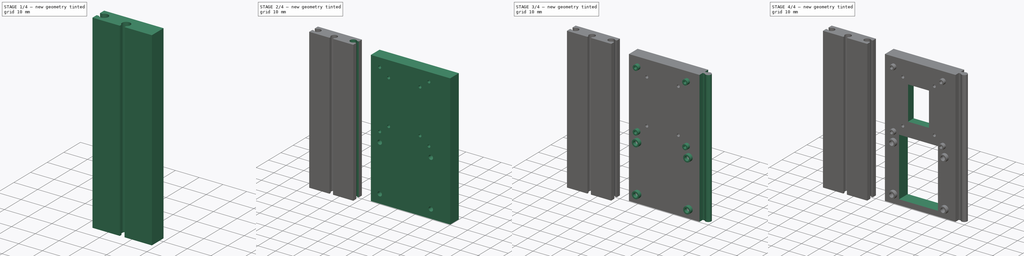
[diagram: build sequence overview — one tinted view per stage of 4, left to right]
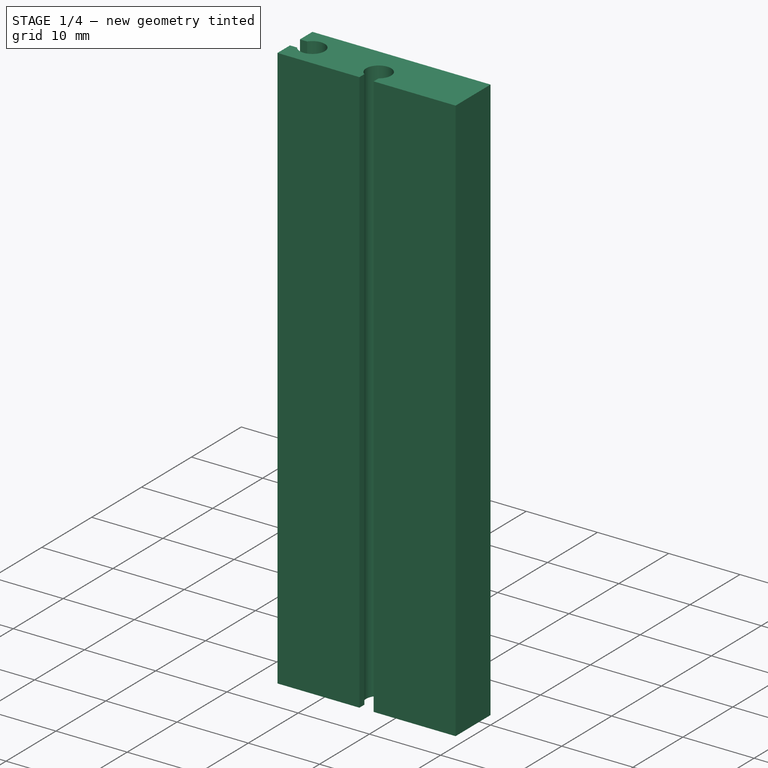
[diagram: stage 1 of 4 — iso view after this stage's code; geometry added in this stage tinted green]
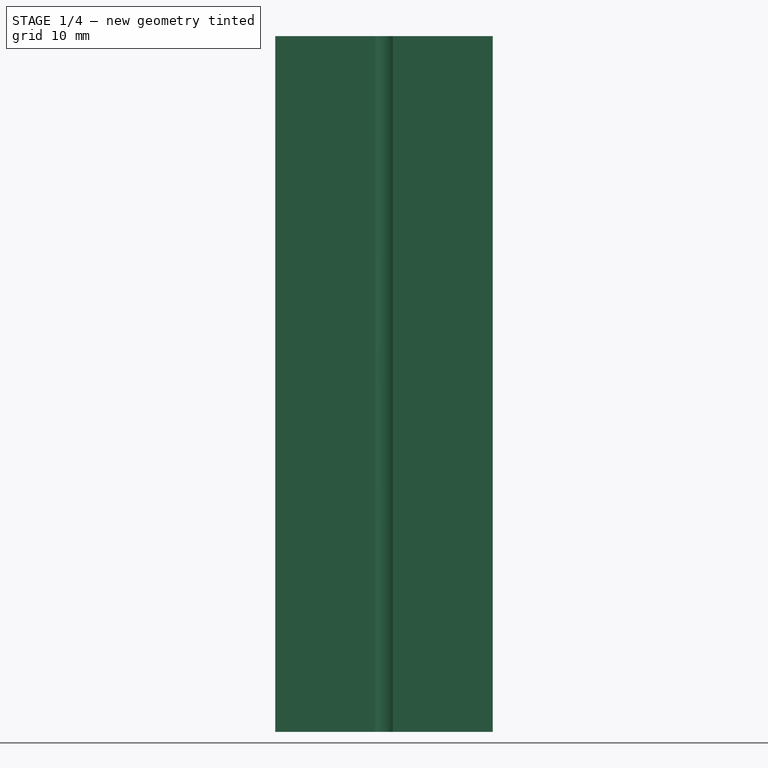
[diagram: stage 1 of 4 — front view after this stage's code; geometry added in this stage tinted green]
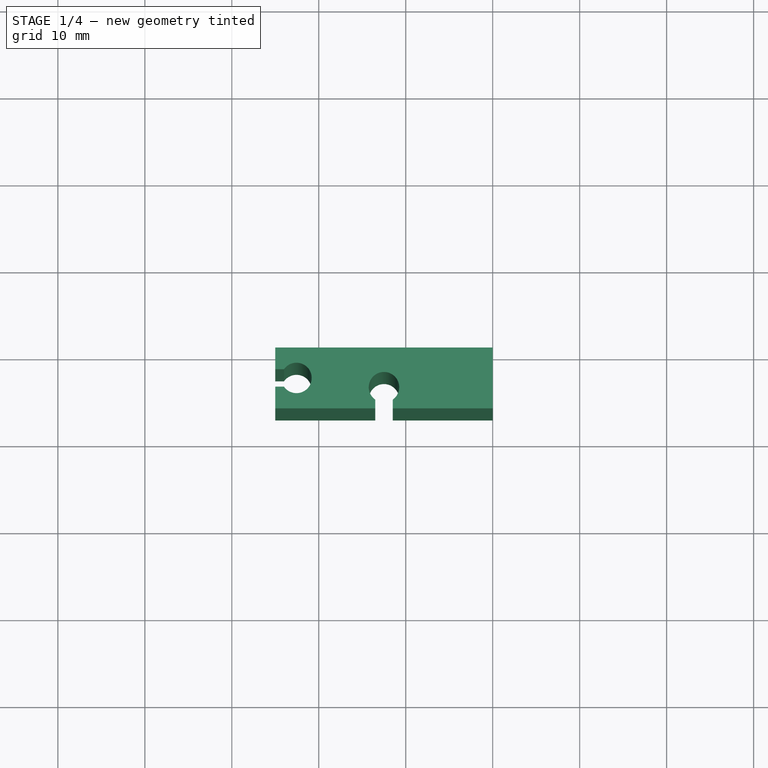
[diagram: stage 1 of 4 — top view after this stage's code; geometry added in this stage tinted green]
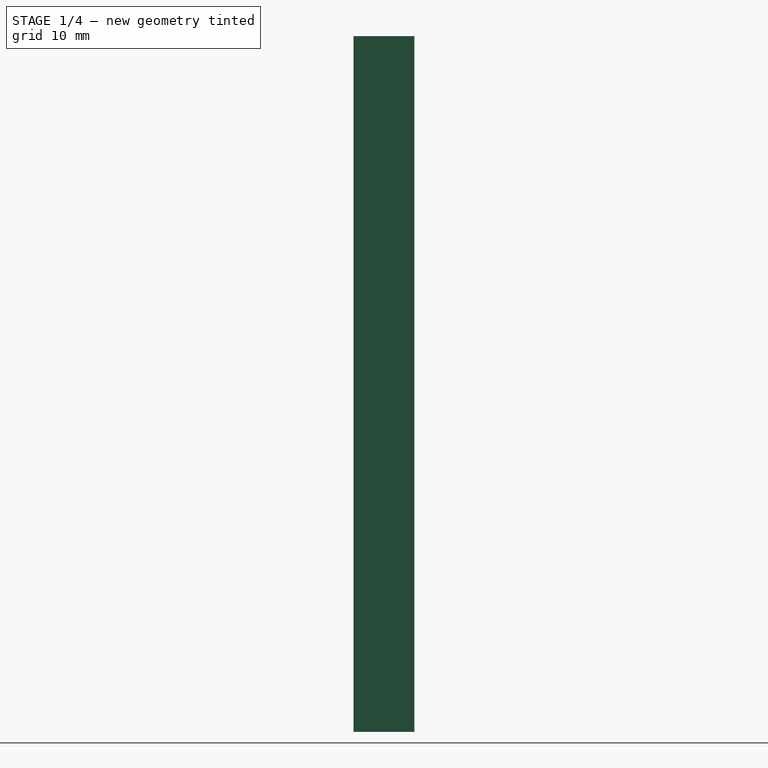
[diagram: stage 1 of 4 — right view after this stage's code; geometry added in this stage tinted green]
FCSTD DOCUMENT  (FreeCAD 0.20R29177 +233 (Git))
Label: board_mount_body
License: All rights reserved
LicenseURL: http://en.wikipedia.org/wiki/All_rights_reserved
objects: Sketcher::SketchObject×10, PartDesign::Pocket×6, PartDesign::Pad×3, Spreadsheet::Sheet×2, PartDesign::Body×2, PartDesign::Fillet×1, PartDesign::Plane×1, PartDesign::Mirrored×1
note: 34 computed .brp shape members not serialized (recipe doc carries the construction recipe); baked Part::Feature solids carry a one-line shape summary decoded from their .brp

FEATURE [Sketcher::SketchObject] Sketch
  FullyConstrained = true
  MapMode = 5
  Placement = pos=(0,0,0) rot=(1,0,0;1.5708rad)
  Support = -> [XZ_Plane]
  sketch-geometry (4):
    g0: LineSegment StartX=-25 StartY=80 StartZ=0 EndX=0 EndY=80 EndZ=0
    g1: LineSegment StartX=0 StartY=80 StartZ=0 EndX=0 EndY=0 EndZ=0
    g2: LineSegment StartX=0 StartY=0 StartZ=0 EndX=-25 EndY=0 EndZ=0
    g3: LineSegment StartX=-25 StartY=0 StartZ=0 EndX=-25 EndY=80 EndZ=0
  constraints (11):
    c: Coincident(g0,g1)
    c: Coincident(g1,g2)
    c: Coincident(g2,g3)
    c: Coincident(g3,g0)
    c: Horizontal(g0)
    c: Horizontal(g2)
    c: Vertical(g1)
    c: Vertical(g3)
    c: Coincident(g1,g-1)
    c: DistanceX(g0,g0) = 25
    c: DistanceY(g1,g1) = 80
FEATURE [PartDesign::Pad] Pad
  Direction = (0,-1,2e-16)
  Length = 7
  Length2 = 10
  Placement = pos=(0,0,0) rot=(1,0,0;1.5708rad)
  Profile = -> Sketch
  ReferenceAxis = -> Sketch [N_Axis]
  Type = 0
FEATURE [Sketcher::SketchObject] Sketch005
  ExternalGeometry = -> [Pad]
  FullyConstrained = true
  MapMode = 5
  Placement = pos=(0,0,0) rot=(1,0,0;3.14159rad)
  Support = -> [Pad]
  sketch-geometry (6):
    g0: LineSegment StartX=-13.5 StartY=7 StartZ=0 EndX=-13.5 EndY=6 EndZ=0
    g1: LineSegment StartX=-11.5 StartY=7 StartZ=0 EndX=-11.5 EndY=6 EndZ=0
    g2: LineSegment StartX=-13.5 StartY=7 StartZ=0 EndX=-11.5 EndY=7 EndZ=0
    g3: GeomPoint X=-12.5 Y=7 Z=0
    g4: Circle CenterX=-12.5 CenterY=4.56386 CenterZ=0 NormalX=0 NormalY=0 NormalZ=1 AngleXU=0 Radius=1.75
    g5: ArcOfCircle CenterX=-12.5 CenterY=4.56386 CenterZ=0 NormalX=0 NormalY=0 NormalZ=1 AngleXU=0 Radius=1.75 StartAngle=2.17904 EndAngle=7.24574
  constraints (15):
    c: PointOnObject(g0,g-3)
    c: Coincident(g2,g0)
    c: Coincident(g2,g1)
    c: Symmetric(g1,g0,g3)
    c: Equal(g1,g0)
    c: Distance(g2) = 2
    c: Symmetric(g-3,g-4,g3)
    c: Vertical(g1)
    c: Vertical(g0)
    c: PointOnObject(g1,g4)
    c: Distance(g0) = 1
    c: Coincident(g5,g4)
    c: Coincident(g5,g1)
    c: Coincident(g5,g0)
    c: Diameter(g4) = 3.5
FEATURE [PartDesign::Pocket] Pocket001
  BaseFeature = -> Pad
  Direction = (0,2e-16,1)
  Length = 5
  Length2 = 5
  Placement = pos=(0,0,0) rot=(1,0,0;1.5708rad)
  Profile = -> Sketch005
  ReferenceAxis = -> Sketch005 [N_Axis]
  Type = 2
FEATURE [PartDesign::Body] Body001
  Group = -> [Sketch003,Pad001,Sketch004,Pocket,Sketch006,Pocket002,Sketch007,Pad002,Sketch008,Pocket003,Fillet,Sketch009,Pocket004]
  Origin = -> Origin001
  Tip = -> Pocket004
FEATURE [Sketcher::SketchObject] Sketch011
  ExternalGeometry = -> [Pocket001]
  FullyConstrained = true
  MapMode = 5
  Placement = pos=(0,0,0) rot=(1,0,0;3.14159rad)
  Support = -> [Pocket001]
  expr: Constraints[11] = 3.5 / 2
  sketch-geometry (5):
    g0: LineSegment StartX=-24 StartY=4.5 StartZ=0 EndX=-25 EndY=4.5 EndZ=0
    g1: LineSegment StartX=-25 StartY=4.5 StartZ=0 EndX=-25 EndY=2.5 EndZ=0
    g2: LineSegment StartX=-25 StartY=2.5 StartZ=0 EndX=-24 EndY=2.5 EndZ=0
    g3: GeomPoint X=-25 Y=3.5 Z=0
    g4: ArcOfCircle CenterX=-22.5639 CenterY=3.5 CenterZ=0 NormalX=0 NormalY=0 NormalZ=1 AngleXU=0 Radius=1.75 StartAngle=3.74984 EndAngle=8.81653
  constraints (13):
    c: Coincident(g1,g0)
    c: Vertical(g1)
    c: Coincident(g2,g1)
    c: Equal(g2,g0)
    c: Symmetric(g1,g0,g3)
    c: Symmetric(g-4,g-5,g3)
    c: Distance(g0,g1) = 2
    c: Horizontal(g0)
    c: Horizontal(g2)
    c: Coincident(g4,g0)
    c: Coincident(g4,g2)
    c: Radius(g4) = 1.75
    c: Distance(g2) = 1
FEATURE [PartDesign::Pocket] Pocket005
  BaseFeature = -> Pocket001
  Direction = (0,2e-16,1)
  Length = 5
  Length2 = 5
  Placement = pos=(0,0,0) rot=(1,0,0;1.5708rad)
  Profile = -> Sketch011
  ReferenceAxis = -> Sketch011 [N_Axis]
  Type = 2
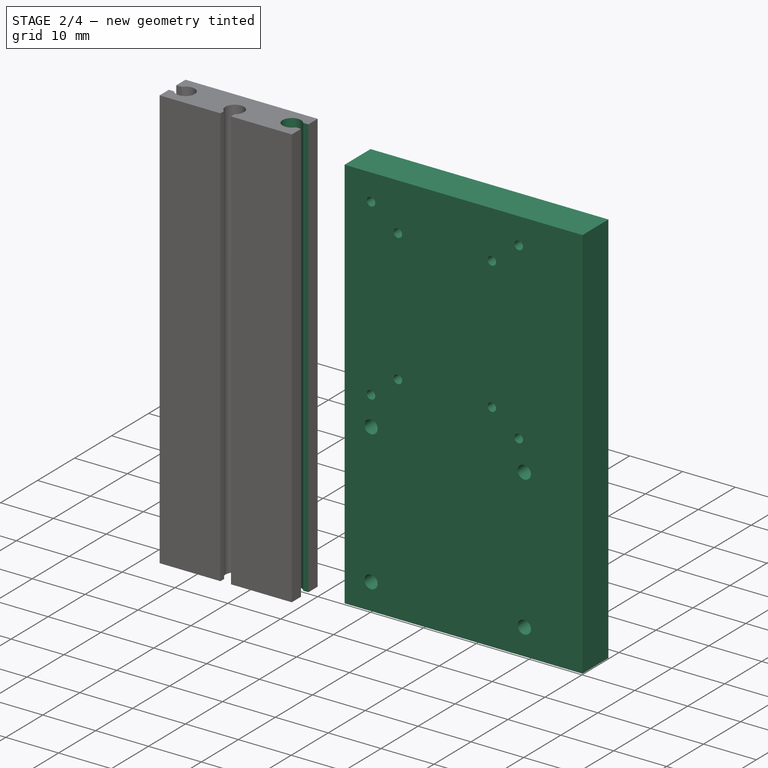
[diagram: stage 2 of 4 — iso view after this stage's code; geometry added in this stage tinted green]
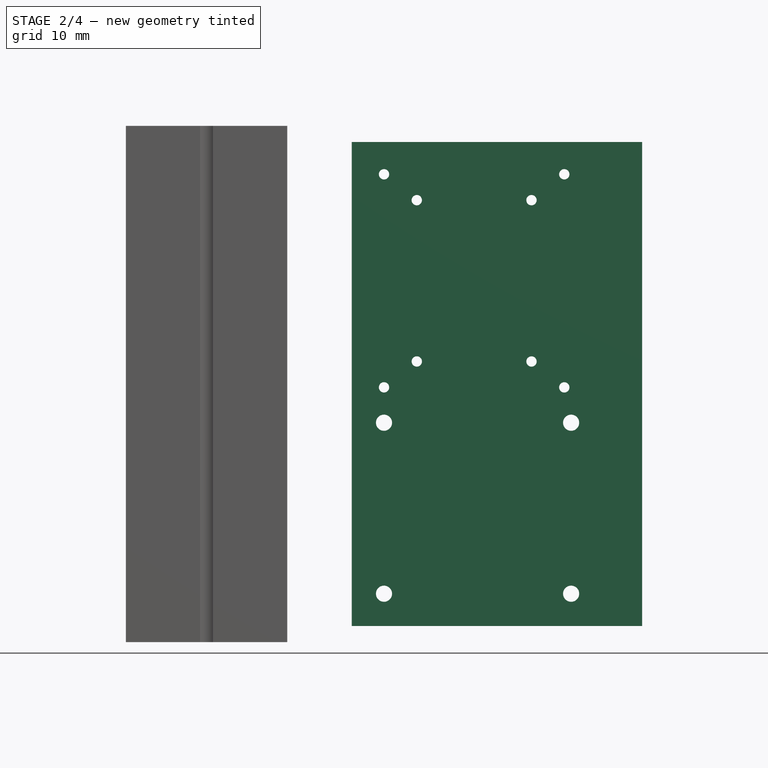
[diagram: stage 2 of 4 — front view after this stage's code; geometry added in this stage tinted green]
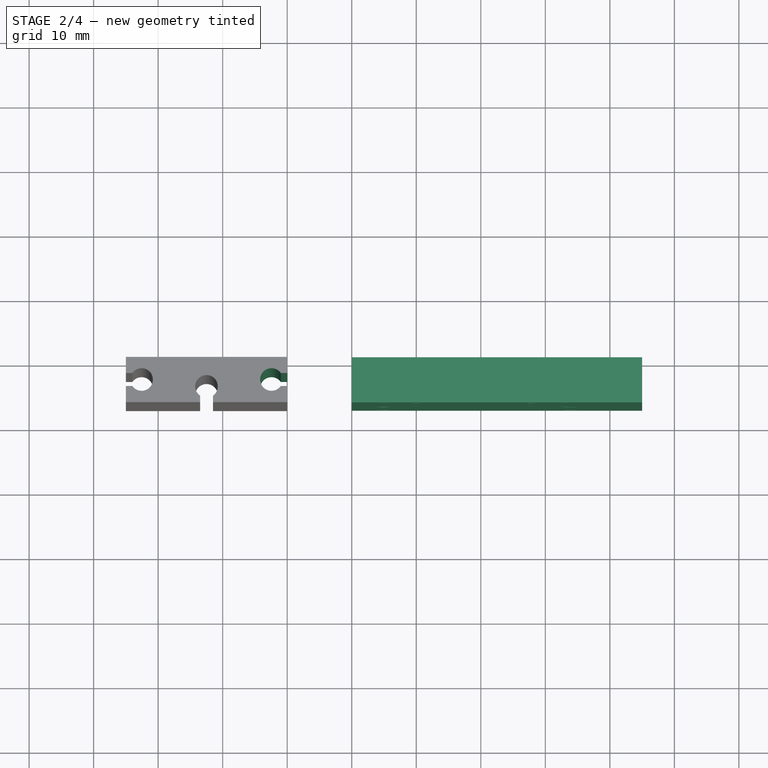
[diagram: stage 2 of 4 — top view after this stage's code; geometry added in this stage tinted green]
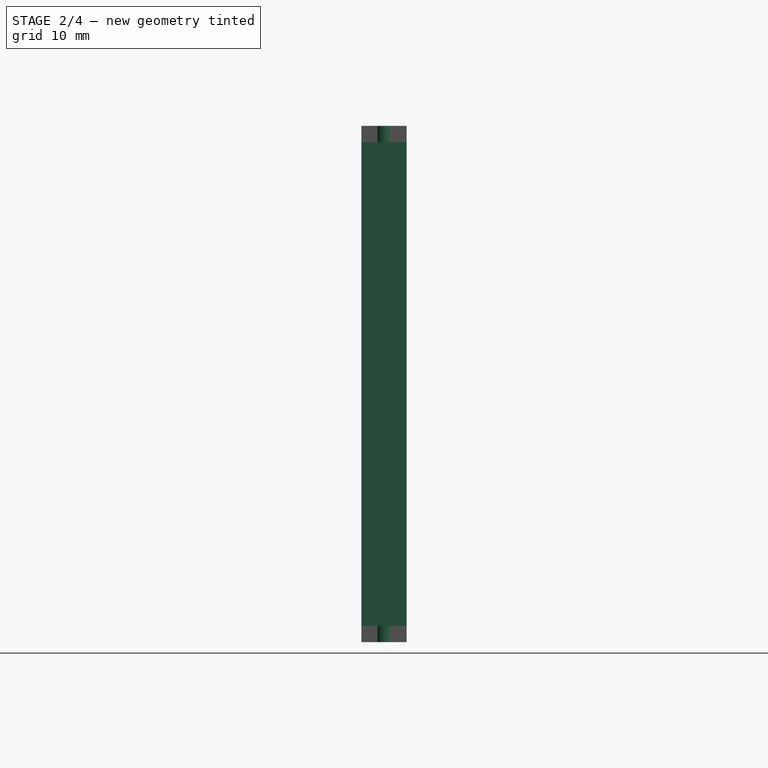
[diagram: stage 2 of 4 — right view after this stage's code; geometry added in this stage tinted green]
FEATURE [Spreadsheet::Sheet] Spreadsheet  label="solar controller dims"
  cells = A1=horizontal mount spacing; B1(mount_hole_width)==1.3in; A2=vertical mount spacing; B2(mount_hole_height)==1.1in
FEATURE [Sketcher::SketchObject] Sketch003
  FullyConstrained = true
  MapMode = 5
  Placement = pos=(0,0,0) rot=(1,0,0;1.5708rad)
  Support = -> [XZ_Plane001]
  expr: Constraints[10] = (80 - 75) / 2
  sketch-geometry (4):
    g0: LineSegment StartX=10 StartY=77.5 StartZ=0 EndX=55 EndY=77.5 EndZ=0
    g1: LineSegment StartX=55 StartY=77.5 StartZ=0 EndX=55 EndY=2.5 EndZ=0
    g2: LineSegment StartX=55 StartY=2.5 StartZ=0 EndX=10 EndY=2.5 EndZ=0
    g3: LineSegment StartX=10 StartY=2.5 StartZ=0 EndX=10 EndY=77.5 EndZ=0
  constraints (12):
    c: Coincident(g0,g1)
    c: Coincident(g1,g2)
    c: Coincident(g2,g3)
    c: Coincident(g3,g0)
    c: Horizontal(g0)
    c: Horizontal(g2)
    c: Vertical(g1)
    c: Vertical(g3)
    c: DistanceY(g1,g1) = 75
    c: DistanceX(g2,g2) = 45
    c: DistanceY(g-1,g2) = 2.5
    c: DistanceX(g-1,g2) = 10
FEATURE [PartDesign::Pad] Pad001
  Direction = (0,-1,2e-16)
  Length = 7
  Length2 = 10
  Placement = pos=(0,0,0) rot=(1,0,0;1.5708rad)
  Profile = -> Sketch003
  ReferenceAxis = -> Sketch003 [N_Axis]
  Type = 0
FEATURE [Sketcher::SketchObject] Sketch004
  ExternalGeometry = -> [Pad001]
  FullyConstrained = true
  MapMode = 5
  Placement = pos=(0,-7,3.1e-15) rot=(1,0,0;1.5708rad)
  Support = -> [Pad001]
  expr: Constraints[16] = <<solar controller dims>>.mount_hole_width
  expr: Constraints[17] = <<solar controller dims>>.mount_hole_height
  expr: Constraints[36] = <<buck boost dims>>.mount_hole_width
  sketch-geometry (29):
    g0: LineSegment StartX=15 StartY=39.48 StartZ=0 EndX=42.94 EndY=39.48 EndZ=0
    g1: LineSegment StartX=42.94 StartY=39.48 StartZ=0 EndX=42.94 EndY=72.5 EndZ=0
    g2: LineSegment StartX=42.94 StartY=72.5 StartZ=0 EndX=15 EndY=72.5 EndZ=0
    g3: LineSegment StartX=15 StartY=72.5 StartZ=0 EndX=15 EndY=39.48 EndZ=0
    g4: Circle CenterX=15 CenterY=39.48 CenterZ=0 NormalX=0 NormalY=0 NormalZ=1 AngleXU=0 Radius=0.8
    g5: Circle CenterX=15 CenterY=72.5 CenterZ=0 NormalX=0 NormalY=0 NormalZ=1 AngleXU=0 Radius=0.8
    g6: Circle CenterX=42.94 CenterY=39.48 CenterZ=0 NormalX=0 NormalY=0 NormalZ=1 AngleXU=0 Radius=0.8
    g7: Circle CenterX=42.94 CenterY=72.5 CenterZ=0 NormalX=0 NormalY=0 NormalZ=1 AngleXU=0 Radius=0.8
    g8: LineSegment StartX=15 StartY=7.5 StartZ=0 EndX=44 EndY=7.5 EndZ=0
    g9: LineSegment StartX=44 StartY=7.5 StartZ=0 EndX=44 EndY=34 EndZ=0
    g10: LineSegment StartX=44 StartY=34 StartZ=0 EndX=15 EndY=34 EndZ=0
    g11: LineSegment StartX=15 StartY=34 StartZ=0 EndX=15 EndY=7.5 EndZ=0
    g12: LineSegment StartX=20.08 StartY=43.49 StartZ=0 EndX=37.86 EndY=43.49 EndZ=0
    g13: LineSegment StartX=37.86 StartY=43.49 StartZ=0 EndX=37.86 EndY=68.49 EndZ=0
    g14: LineSegment StartX=37.86 StartY=68.49 StartZ=0 EndX=20.08 EndY=68.49 EndZ=0
    g15: LineSegment StartX=20.08 StartY=68.49 StartZ=0 EndX=20.08 EndY=43.49 EndZ=0
    g16: LineSegment StartX=15 StartY=55.99 StartZ=0 EndX=42.94 EndY=55.99 EndZ=0
    g17: LineSegment StartX=28.97 StartY=39.48 StartZ=0 EndX=28.97 EndY=72.5 EndZ=0
    g18: GeomPoint X=28.97 Y=55.99 Z=0
    g19: GeomPoint X=20.08 Y=55.99 Z=0
    g20: GeomPoint X=28.97 Y=43.49 Z=0
    g21: Circle CenterX=20.08 CenterY=43.49 CenterZ=0 NormalX=0 NormalY=0 NormalZ=1 AngleXU=0 Radius=0.8
    g22: Circle CenterX=20.08 CenterY=68.49 CenterZ=0 NormalX=0 NormalY=0 NormalZ=1 AngleXU=0 Radius=0.8
    g23: Circle CenterX=37.86 CenterY=68.49 CenterZ=0 NormalX=0 NormalY=0 NormalZ=1 AngleXU=0 Radius=0.8
    g24: Circle CenterX=37.86 CenterY=43.49 CenterZ=0 NormalX=0 NormalY=0 NormalZ=1 AngleXU=0 Radius=0.8
    g25: Circle CenterX=15 CenterY=7.5 CenterZ=0 NormalX=0 NormalY=0 NormalZ=1 AngleXU=0 Radius=1.25
    g26: Circle CenterX=15 CenterY=34 CenterZ=0 NormalX=0 NormalY=0 NormalZ=1 AngleXU=0 Radius=1.25
    g27: Circle CenterX=44 CenterY=34 CenterZ=0 NormalX=0 NormalY=0 NormalZ=1 AngleXU=0 Radius=1.25
    g28: Circle CenterX=44 CenterY=7.5 CenterZ=0 NormalX=0 NormalY=0 NormalZ=1 AngleXU=0 Radius=1.25
  constraints (68):
    c: Coincident(g0,g1)
    c: Coincident(g1,g2)
    c: Coincident(g2,g3)
    c: Coincident(g3,g0)
    c: Horizontal(g0)
    c: Horizontal(g2)
    c: Vertical(g1)
    c: Vertical(g3)
    c: Coincident(g4,g0)
    c: Coincident(g5,g2)
    c: Coincident(g6,g0)
    c: Coincident(g7,g1)
    c: Equal(g6,g4)
    c: Equal(g4,g5)
    c: Equal(g5,g7)
    c: Diameter(g4) = 1.6
    c: Distance(g3) = 33.02
    c: Distance(g0) = 27.94
    c: Coincident(g8,g9)
    c: Coincident(g9,g10)
    c: Coincident(g10,g11)
    c: Coincident(g11,g8)
    c: Horizontal(g8)
    c: Horizontal(g10)
    c: Vertical(g9)
    c: Vertical(g11)
    c: Distance(g11) = 26.5
    c: Distance(g10) = 29
    c: Coincident(g12,g13)
    c: Coincident(g13,g14)
    c: Coincident(g14,g15)
    c: Coincident(g15,g12)
    c: Horizontal(g12)
    c: Horizontal(g14)
    c: Vertical(g13)
    c: Vertical(g15)
    c: Distance(g12) = 17.78
    c: PointOnObject(g18,g16)
    c: PointOnObject(g18,g17)
    c: Symmetric(g6,g4,g17)
    c: Symmetric(g4,g5,g16)
    c: Symmetric(g5,g7,g17)
    c: Symmetric(g6,g7,g16)
    c: Symmetric(g14,g12,g19)
    c: PointOnObject(g19,g16)
    c: Symmetric(g12,g12,g20)
    c: PointOnObject(g20,g17)
    c: Distance(g13) = 25
    c: Coincident(g21,g12)
    c: Coincident(g22,g14)
    c: Coincident(g23,g13)
    c: Coincident(g24,g12)
    c: Equal(g24,g21)
    c: Equal(g21,g22)
    c: Equal(g22,g23)
    c: Equal(g23,g4)
    c: DistanceY(g-4,g8) = 5
    c: DistanceY(g5,g-6) = 5
    c: DistanceX(g-6,g5) = 5
    c: DistanceX(g-4,g8) = 5
    c: Coincident(g25,g8)
    c: Coincident(g26,g10)
    c: Coincident(g27,g9)
    c: Coincident(g28,g8)
    c: Equal(g25,g26)
    c: Equal(g25,g28)
    c: Equal(g25,g27)
    c: Diameter(g25) = 2.5
FEATURE [Spreadsheet::Sheet] Spreadsheet001  label="buck boost dims"
  cells = A1=mount hole width; B1(mount_hole_width)==0.7in
FEATURE [PartDesign::Pocket] Pocket  label="board mount holes"
  BaseFeature = -> Pad001
  Direction = (0,1,-2e-16)
  Length = 5
  Length2 = 5
  Placement = pos=(0,0,0) rot=(1,0,0;1.5708rad)
  Profile = -> Sketch004
  ReferenceAxis = -> Sketch004 [N_Axis]
  Type = 2
FEATURE [Sketcher::SketchObject] Sketch012
  ExternalGeometry = -> [Pocket005]
  FullyConstrained = true
  MapMode = 5
  Placement = pos=(0,0,0) rot=(1,0,0;3.14159rad)
  Support = -> [Pocket005]
  sketch-geometry (1):
    g0: LineSegment StartX=-12.5 StartY=7 StartZ=0 EndX=-12.5 EndY=0 EndZ=0
  constraints (3):
    c: PointOnObject(g0,g-1)
    c: Vertical(g0)
    c: Symmetric(g-3,g-4,g0)
FEATURE [PartDesign::Plane] DatumPlane
  AttachmentOffset = pos=(0,0,0) rot=(0,1,0;1.5708rad)
  Length = 64.4914
  MapMode = 7
  Placement = pos=(-12.5,-7,4.6e-15) rot=(0.57735,0.57735,0.57735;2.0944rad)
  ResizeMode = 0
  Support = -> [Sketch012]
  Width = 119.491
FEATURE [PartDesign::Mirrored] Mirrored
  BaseFeature = -> Pocket005
  MirrorPlane = -> DatumPlane
  Originals = -> [Pocket005]
  Placement = pos=(0,0,0) rot=(1,0,0;1.5708rad)
FEATURE [PartDesign::Body] Body
  Group = -> [Sketch,Pad,Sketch005,Pocket001,Sketch011,Pocket005,Sketch012,DatumPlane,Mirrored]
  Origin = -> Origin
  Tip = -> Mirrored
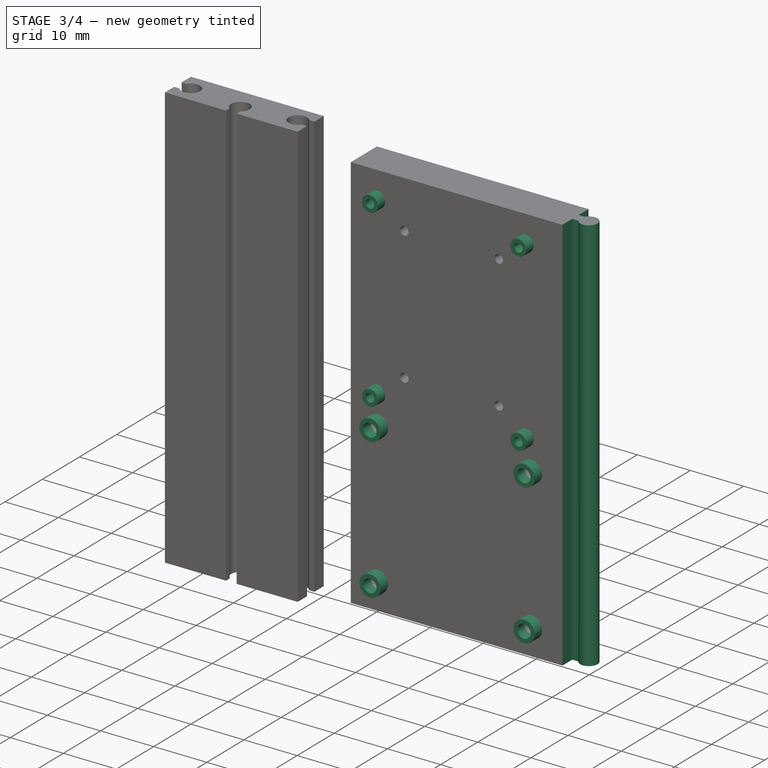
[diagram: stage 3 of 4 — iso view after this stage's code; geometry added in this stage tinted green]
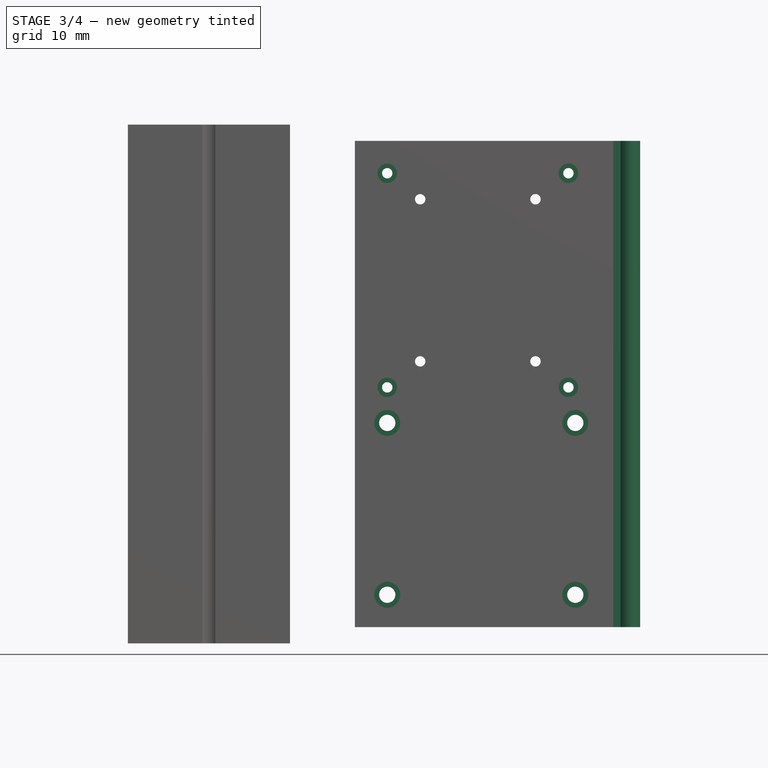
[diagram: stage 3 of 4 — front view after this stage's code; geometry added in this stage tinted green]
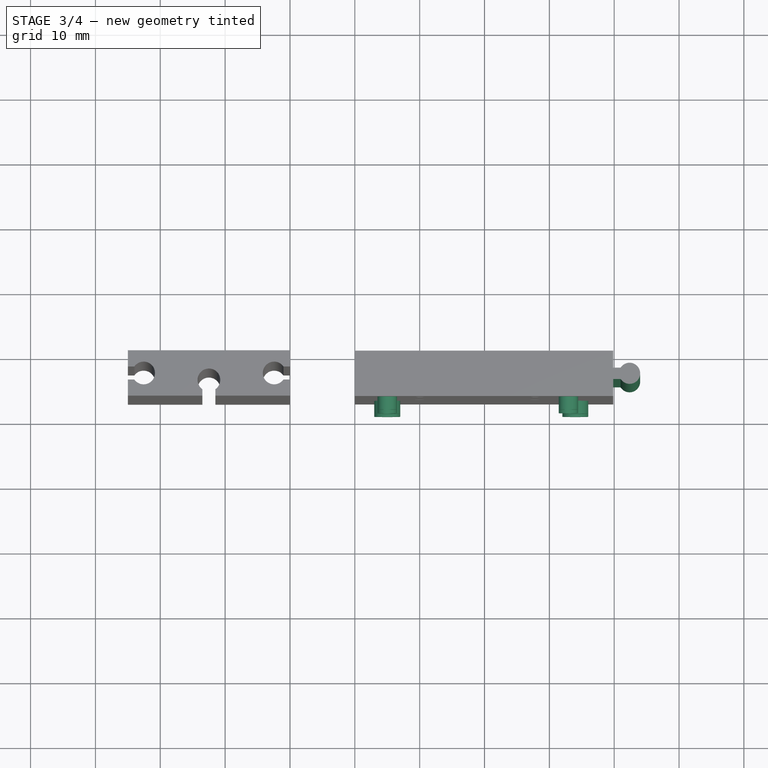
[diagram: stage 3 of 4 — top view after this stage's code; geometry added in this stage tinted green]
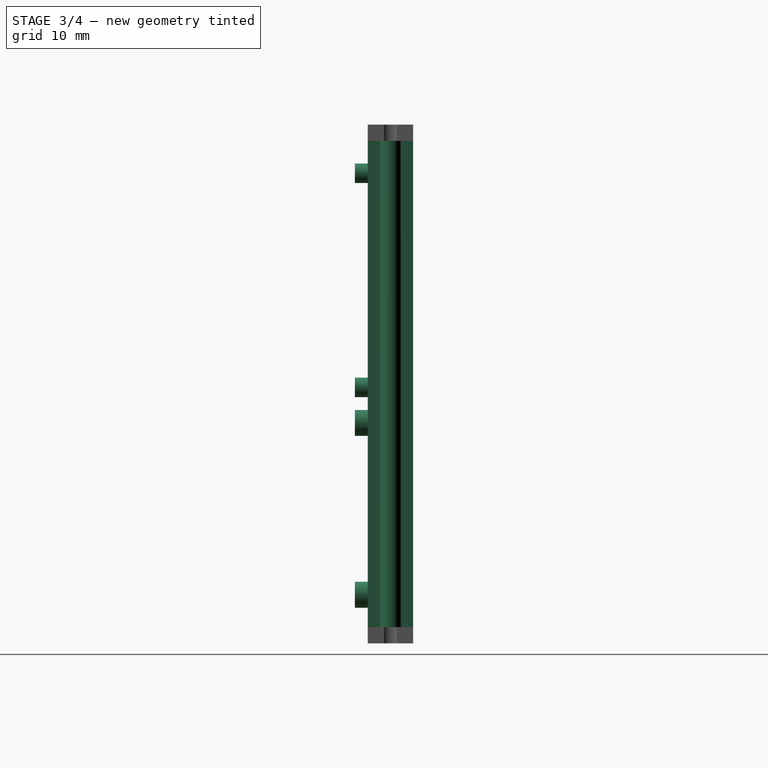
[diagram: stage 3 of 4 — right view after this stage's code; geometry added in this stage tinted green]
FEATURE [Sketcher::SketchObject] Sketch006
  ExternalGeometry = -> [Pocket]
  FullyConstrained = true
  MapMode = 5
  Placement = pos=(0,1.7e-15,2.5) rot=(1,0,0;3.14159rad)
  Support = -> [Pocket]
  expr: Constraints[20] = 1.15
  sketch-geometry (13):
    g0: LineSegment StartX=50.9948 StartY=2.625 StartZ=0 EndX=49.8448 EndY=2.625 EndZ=0
    g1: LineSegment StartX=49.8448 StartY=2.625 StartZ=0 EndX=49.8448 EndY=4.375 EndZ=0
    g2: LineSegment StartX=49.8448 StartY=4.375 StartZ=0 EndX=50.9948 EndY=4.375 EndZ=0
    g3: GeomPoint X=49.8448 Y=3.5 Z=0
    g4: LineSegment StartX=49.8448 StartY=2.625 StartZ=0 EndX=49.8448 EndY=4e-16 EndZ=0
    g5: LineSegment StartX=49.8448 StartY=4.375 StartZ=0 EndX=49.8448 EndY=7 EndZ=0
    g6: LineSegment StartX=49.8448 StartY=7 StartZ=0 EndX=55 EndY=7 EndZ=0
    g7: LineSegment StartX=49.8448 StartY=4e-16 StartZ=0 EndX=55 EndY=4e-16 EndZ=0
    g8: LineSegment StartX=55 StartY=4e-16 StartZ=0 EndX=55 EndY=7 EndZ=0
    g9: Circle CenterX=52.37 CenterY=3.5 CenterZ=0 NormalX=0 NormalY=0 NormalZ=1 AngleXU=0 Radius=1.63
    g10: LineSegment StartX=54 StartY=3.5 StartZ=0 EndX=55 EndY=3.5 EndZ=0
    g11: LineSegment StartX=52.37 StartY=3.5 StartZ=0 EndX=54 EndY=3.5 EndZ=0
    g12: ArcOfCircle CenterX=52.37 CenterY=3.5 CenterZ=0 NormalX=0 NormalY=0 NormalZ=1 AngleXU=0 Radius=1.63 StartAngle=3.70824 EndAngle=8.85813
  constraints (33):
    c: Coincident(g1,g0)
    c: Vertical(g1)
    c: Coincident(g2,g1)
    c: Symmetric(g0,g1,g3)
    c: Equal(g0,g2)
    c: Distance(g1,g0) = 1.75
    c: Coincident(g4,g0)
    c: PointOnObject(g4,g-5)
    c: Vertical(g4)
    c: Coincident(g5,g1)
    c: PointOnObject(g5,g-4)
    c: Coincident(g6,g5)
    c: Coincident(g6,g-4)
    c: Coincident(g7,g4)
    c: Coincident(g7,g-5)
    c: Coincident(g8,g7)
    c: Coincident(g8,g6)
    c: Symmetric(g4,g5,g3)
    c: Horizontal(g2)
    c: Horizontal(g0)
    c: Distance(g2) = 1.15
    c: PointOnObject(g2,g9)
    c: PointOnObject(g10,g9)
    c: PointOnObject(g10,g8)
    c: Horizontal(g10)
    c: Coincident(g11,g9)
    c: Coincident(g11,g10)
    c: Horizontal(g11)
    c: Distance(g10) = 1
    c: Coincident(g12,g9)
    c: Coincident(g12,g2)
    c: Coincident(g12,g0)
    c: Radius(g12) = 1.63
FEATURE [PartDesign::Pocket] Pocket002  label="slot male"
  BaseFeature = -> Pocket
  Direction = (0,7e-16,1)
  Length = 5
  Length2 = 5
  Placement = pos=(0,0,0) rot=(1,0,0;1.5708rad)
  Profile = -> Sketch006
  ReferenceAxis = -> Sketch006 [N_Axis]
  Type = 2
FEATURE [Sketcher::SketchObject] Sketch007
  ExternalGeometry = -> [Pocket002]
  FullyConstrained = true
  MapMode = 5
  Placement = pos=(0,-7,3.9e-15) rot=(1,0,0;1.5708rad)
  Support = -> [Pocket002]
  sketch-geometry (16):
    g0: Circle CenterX=15 CenterY=7.5 CenterZ=0 NormalX=0 NormalY=0 NormalZ=1 AngleXU=0 Radius=2
    g1: Circle CenterX=15 CenterY=7.5 CenterZ=0 NormalX=0 NormalY=0 NormalZ=1 AngleXU=0 Radius=1.25
    g2: Circle CenterX=15 CenterY=34 CenterZ=0 NormalX=0 NormalY=0 NormalZ=1 AngleXU=0 Radius=2
    g3: Circle CenterX=15 CenterY=34 CenterZ=0 NormalX=0 NormalY=0 NormalZ=1 AngleXU=0 Radius=1.25
    g4: Circle CenterX=44 CenterY=7.5 CenterZ=0 NormalX=0 NormalY=0 NormalZ=1 AngleXU=0 Radius=2
    g5: Circle CenterX=44 CenterY=7.5 CenterZ=0 NormalX=0 NormalY=0 NormalZ=1 AngleXU=0 Radius=1.25
    g6: Circle CenterX=44 CenterY=34 CenterZ=0 NormalX=0 NormalY=0 NormalZ=1 AngleXU=0 Radius=1.25
    g7: Circle CenterX=44 CenterY=34 CenterZ=0 NormalX=0 NormalY=0 NormalZ=1 AngleXU=0 Radius=2
    g8: Circle CenterX=15 CenterY=39.48 CenterZ=0 NormalX=0 NormalY=0 NormalZ=1 AngleXU=0 Radius=1.5
    g9: Circle CenterX=15 CenterY=39.48 CenterZ=0 NormalX=0 NormalY=0 NormalZ=1 AngleXU=0 Radius=0.8
    g10: Circle CenterX=15 CenterY=72.5 CenterZ=0 NormalX=0 NormalY=0 NormalZ=1 AngleXU=0 Radius=1.5
    g11: Circle CenterX=15 CenterY=72.5 CenterZ=0 NormalX=0 NormalY=0 NormalZ=1 AngleXU=0 Radius=0.8
    g12: Circle CenterX=42.94 CenterY=39.48 CenterZ=0 NormalX=0 NormalY=0 NormalZ=1 AngleXU=0 Radius=1.5
    g13: Circle CenterX=42.94 CenterY=39.48 CenterZ=0 NormalX=0 NormalY=0 NormalZ=1 AngleXU=0 Radius=0.8
    g14: Circle CenterX=42.94 CenterY=72.5 CenterZ=0 NormalX=0 NormalY=0 NormalZ=1 AngleXU=0 Radius=0.8
    g15: Circle CenterX=42.94 CenterY=72.5 CenterZ=0 NormalX=0 NormalY=0 NormalZ=1 AngleXU=0 Radius=1.5
  constraints (32):
    c: Coincident(g0,g-8)
    c: Coincident(g1,g0)
    c: Coincident(g2,g-6)
    c: Coincident(g3,g2)
    c: Coincident(g4,g-9)
    c: Coincident(g5,g4)
    c: Coincident(g6,g-7)
    c: Coincident(g7,g6)
    c: Equal(g1,g3)
    c: Equal(g3,g6)
    c: Equal(g6,g5)
    c: Equal(g5,g-8)
    c: Equal(g0,g2)
    c: Equal(g2,g7)
    c: Equal(g7,g4)
    c: Coincident(g8,g-4)
    c: Coincident(g9,g8)
    c: Coincident(g10,g-3)
    c: Coincident(g11,g10)
    c: Coincident(g12,g-5)
    c: Coincident(g13,g12)
    c: Coincident(g14,g-10)
    c: Coincident(g15,g14)
    c: Equal(g9,g11)
    c: Equal(g11,g14)
    c: Equal(g14,g13)
    c: Equal(g13,g-4)
    c: Equal(g8,g10)
    c: Equal(g10,g15)
    c: Equal(g15,g12)
    c: Diameter(g0) = 4
    c: Diameter(g8) = 3
FEATURE [PartDesign::Pad] Pad002
  BaseFeature = -> Pocket002
  Direction = (0,-1,4e-16)
  Length = 2
  Length2 = 10
  Placement = pos=(0,0,0) rot=(1,0,0;1.5708rad)
  Profile = -> Sketch007
  ReferenceAxis = -> Sketch007 [N_Axis]
  Type = 0
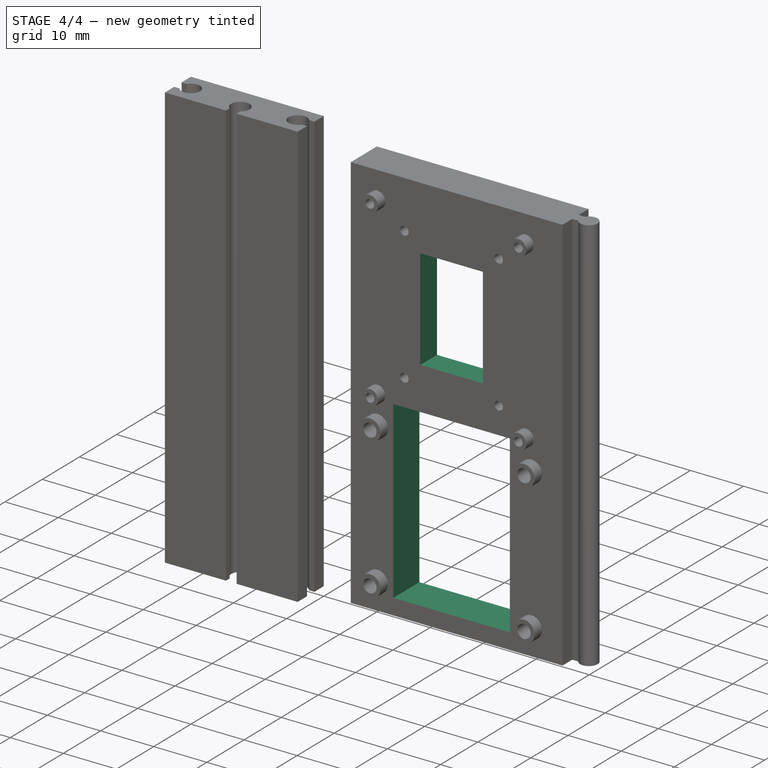
[diagram: stage 4 of 4 — iso view after this stage's code; geometry added in this stage tinted green]
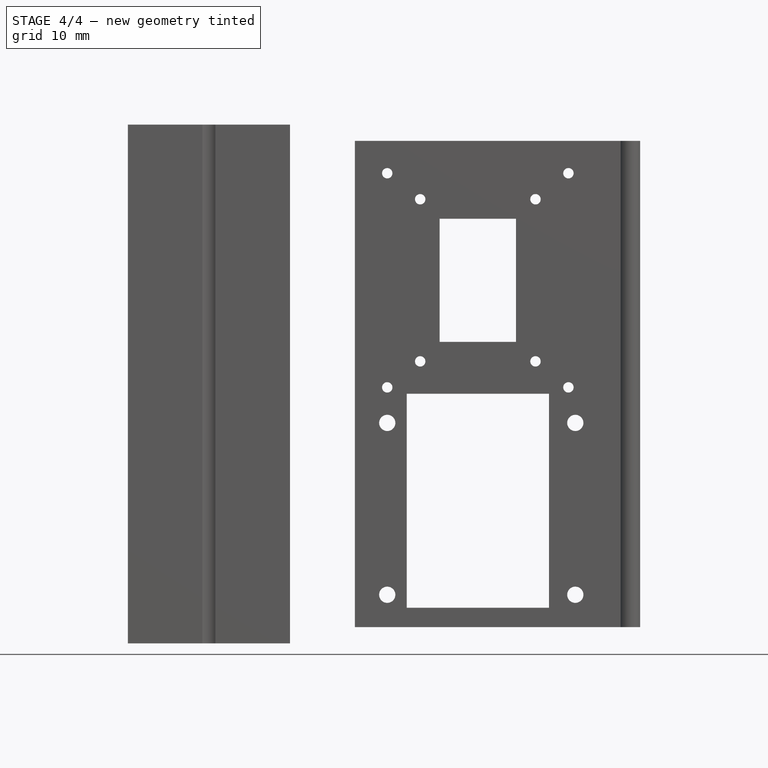
[diagram: stage 4 of 4 — front view after this stage's code; geometry added in this stage tinted green]
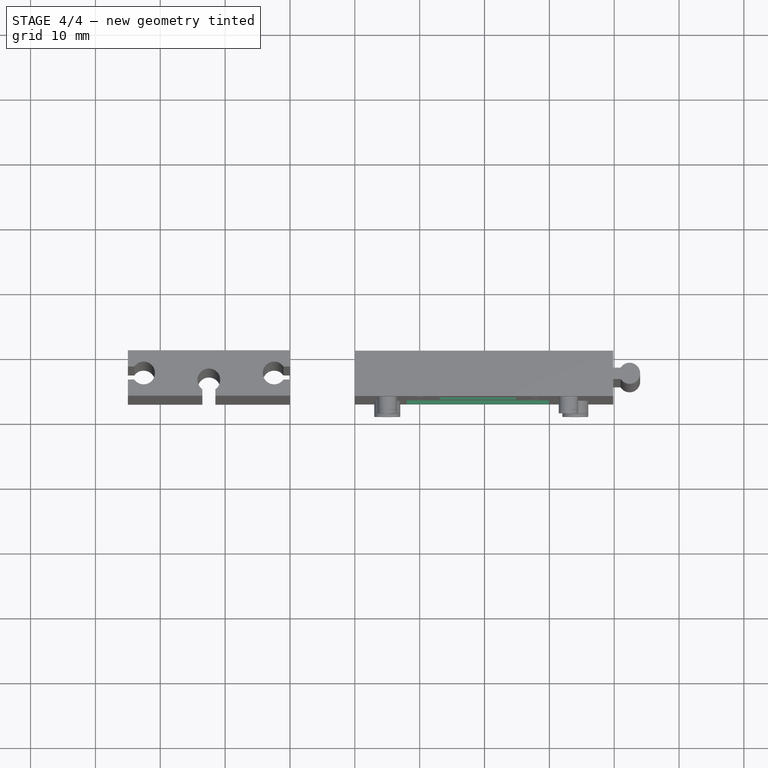
[diagram: stage 4 of 4 — top view after this stage's code; geometry added in this stage tinted green]
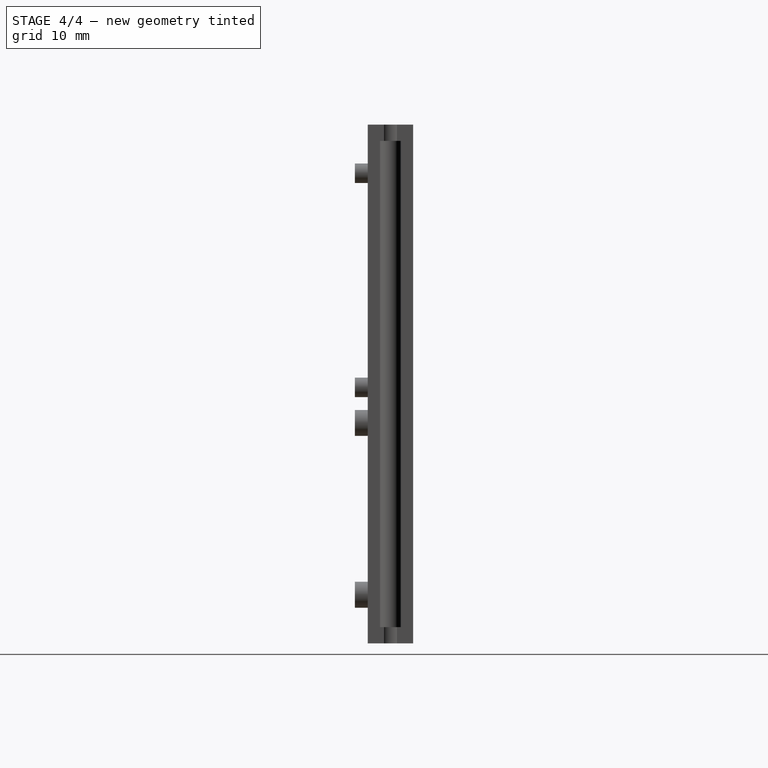
[diagram: stage 4 of 4 — right view after this stage's code; geometry added in this stage tinted green]
FEATURE [Sketcher::SketchObject] Sketch008
  ExternalGeometry = -> [Pad002]
  FullyConstrained = true
  MapMode = 5
  Placement = pos=(0,1e-16,0) rot=(-1,0,0;1.5708rad)
  Support = -> [Pad002]
  sketch-geometry (16):
    g0: Circle CenterX=20.08 CenterY=-43.49 CenterZ=0 NormalX=0 NormalY=0 NormalZ=1 AngleXU=0 Radius=1.5
    g1: Circle CenterX=37.86 CenterY=-43.49 CenterZ=0 NormalX=0 NormalY=0 NormalZ=1 AngleXU=0 Radius=1.5
    g2: Circle CenterX=20.08 CenterY=-68.49 CenterZ=0 NormalX=0 NormalY=0 NormalZ=1 AngleXU=0 Radius=1.5
    g3: Circle CenterX=37.86 CenterY=-68.49 CenterZ=0 NormalX=0 NormalY=0 NormalZ=1 AngleXU=0 Radius=1.5
    g4: LineSegment StartX=16.47 StartY=-40.99 StartZ=0 EndX=41.47 EndY=-40.99 EndZ=0
    g5: LineSegment StartX=41.47 StartY=-40.99 StartZ=0 EndX=41.47 EndY=-70.99 EndZ=0
    g6: LineSegment StartX=41.47 StartY=-70.99 StartZ=0 EndX=16.47 EndY=-70.99 EndZ=0
    g7: LineSegment StartX=16.47 StartY=-70.99 StartZ=0 EndX=16.47 EndY=-40.99 EndZ=0
    g8: LineSegment StartX=20.08 StartY=-43.49 StartZ=0 EndX=37.86 EndY=-43.49 EndZ=0
    g9: LineSegment StartX=37.86 StartY=-43.49 StartZ=0 EndX=37.86 EndY=-68.49 EndZ=0
    g10: LineSegment StartX=37.86 StartY=-68.49 StartZ=0 EndX=20.08 EndY=-68.49 EndZ=0
    g11: LineSegment StartX=20.08 StartY=-68.49 StartZ=0 EndX=20.08 EndY=-43.49 EndZ=0
    g12: LineSegment StartX=28.97 StartY=-40.99 StartZ=0 EndX=28.97 EndY=-70.99 EndZ=0
    g13: LineSegment StartX=16.47 StartY=-55.99 StartZ=0 EndX=41.47 EndY=-55.99 EndZ=0
    g14: GeomPoint X=28.97 Y=-43.49 Z=0
    g15: GeomPoint X=20.08 Y=-55.99 Z=0
  constraints (38):
    c: Equal(g0,g1)
    c: Equal(g1,g3)
    c: Equal(g3,g2)
    c: Diameter(g0) = 3
    c: Coincident(g4,g5)
    c: Coincident(g5,g6)
    c: Coincident(g6,g7)
    c: Coincident(g7,g4)
    c: Horizontal(g4)
    c: Horizontal(g6)
    c: Vertical(g5)
    c: Vertical(g7)
    c: Distance(g5) = 30
    c: Coincident(g0,g-3)
    c: Coincident(g-6,g1)
    c: Coincident(g2,g-4)
    c: Coincident(g-5,g3)
    c: Distance(g6) = 25
    c: Coincident(g8,g9)
    c: Coincident(g9,g10)
    c: Coincident(g10,g11)
    c: Coincident(g11,g8)
    c: Horizontal(g8)
    c: Horizontal(g10)
    c: Vertical(g9)
    c: Vertical(g11)
    c: Coincident(g8,g0)
    c: Coincident(g9,g3)
    c: PointOnObject(g12,g6)
    c: PointOnObject(g13,g5)
    c: Horizontal(g13)
    c: Vertical(g12)
    c: Symmetric(g4,g6,g13)
    c: Symmetric(g4,g4,g12)
    c: Symmetric(g0,g1,g14)
    c: Symmetric(g0,g2,g15)
    c: PointOnObject(g15,g13)
    c: PointOnObject(g14,g12)
FEATURE [PartDesign::Pocket] Pocket003
  BaseFeature = -> Pad002
  Direction = (0,-1,7e-16)
  Length = 2.5
  Length2 = 5
  Placement = pos=(0,0,0) rot=(1,0,0;1.5708rad)
  Profile = -> Sketch008
  ReferenceAxis = -> Sketch008 [N_Axis]
  Type = 0
FEATURE [PartDesign::Fillet] Fillet
  Base = -> Pocket003 [Edge58,Edge62,Edge60,Edge57]
  BaseFeature = -> Pocket003
  Placement = pos=(0,0,0) rot=(1,0,0;1.5708rad)
  Radius = 2
  SupportTransform = false
  UseAllEdges = false
FEATURE [Sketcher::SketchObject] Sketch009
  ExternalGeometry = -> [Fillet]
  FullyConstrained = true
  MapMode = 5
  Placement = pos=(0,-7,5.4e-15) rot=(1,0,0;1.5708rad)
  Support = -> [Fillet]
  sketch-geometry (8):
    g0: LineSegment StartX=23.08 StartY=65.49 StartZ=0 EndX=34.86 EndY=65.49 EndZ=0
    g1: LineSegment StartX=34.86 StartY=65.49 StartZ=0 EndX=34.86 EndY=46.49 EndZ=0
    g2: LineSegment StartX=34.86 StartY=46.49 StartZ=0 EndX=23.08 EndY=46.49 EndZ=0
    g3: LineSegment StartX=23.08 StartY=46.49 StartZ=0 EndX=23.08 EndY=65.49 EndZ=0
    g4: LineSegment StartX=18 StartY=38.49 StartZ=0 EndX=39.94 EndY=38.49 EndZ=0
    g5: LineSegment StartX=39.94 StartY=38.49 StartZ=0 EndX=39.94 EndY=5.5 EndZ=0
    g6: LineSegment StartX=39.94 StartY=5.5 StartZ=0 EndX=18 EndY=5.5 EndZ=0
    g7: LineSegment StartX=18 StartY=5.5 StartZ=0 EndX=18 EndY=38.49 EndZ=0
  constraints (24):
    c: Coincident(g0,g1)
    c: Coincident(g1,g2)
    c: Coincident(g2,g3)
    c: Coincident(g3,g0)
    c: Horizontal(g0)
    c: Horizontal(g2)
    c: Vertical(g1)
    c: Vertical(g3)
    c: Coincident(g4,g5)
    c: Coincident(g5,g6)
    c: Coincident(g6,g7)
    c: Coincident(g7,g4)
    c: Horizontal(g4)
    c: Horizontal(g6)
    c: Vertical(g5)
    c: Vertical(g7)
    c: DistanceY(g0,g-7) = 3
    c: DistanceX(g0,g-7) = 3
    c: DistanceX(g-4,g0) = 3
    c: DistanceY(g-5,g2) = 3
    c: DistanceY(g4,g-5) = 5
    c: DistanceX(g-3,g4) = 3
    c: DistanceX(g4,g-9) = 3
    c: DistanceY(g-8,g5) = 3
FEATURE [PartDesign::Pocket] Pocket004
  BaseFeature = -> Fillet
  Direction = (0,1,-7e-16)
  Length = 0
  Length2 = 5
  Placement = pos=(0,0,0) rot=(1,0,0;1.5708rad)
  Profile = -> Sketch009
  ReferenceAxis = -> Sketch009 [N_Axis]
  Type = 3
  UpToFace = -> Fillet [Face1]
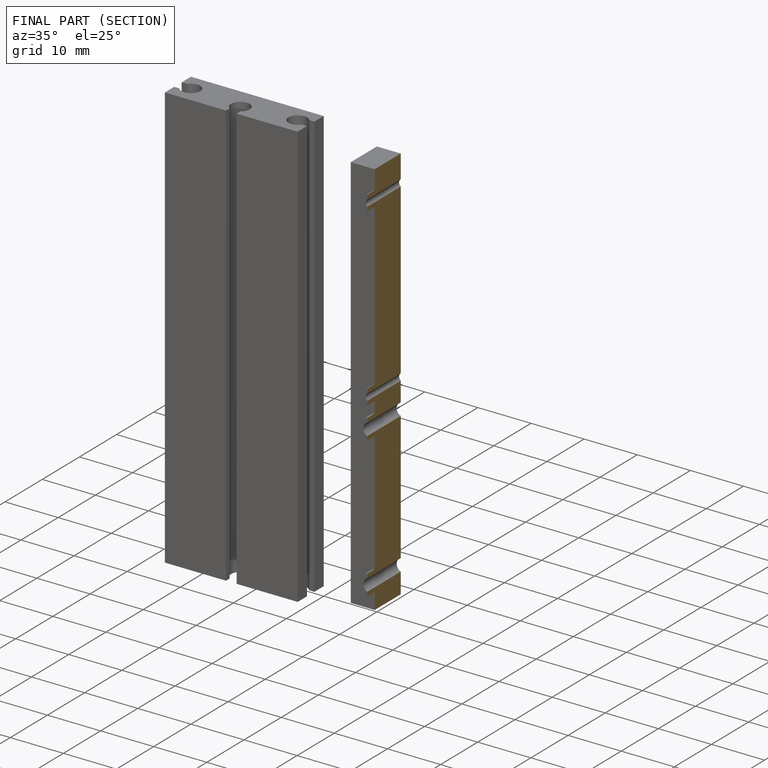
[diagram: finished part — half-section view (interior)]
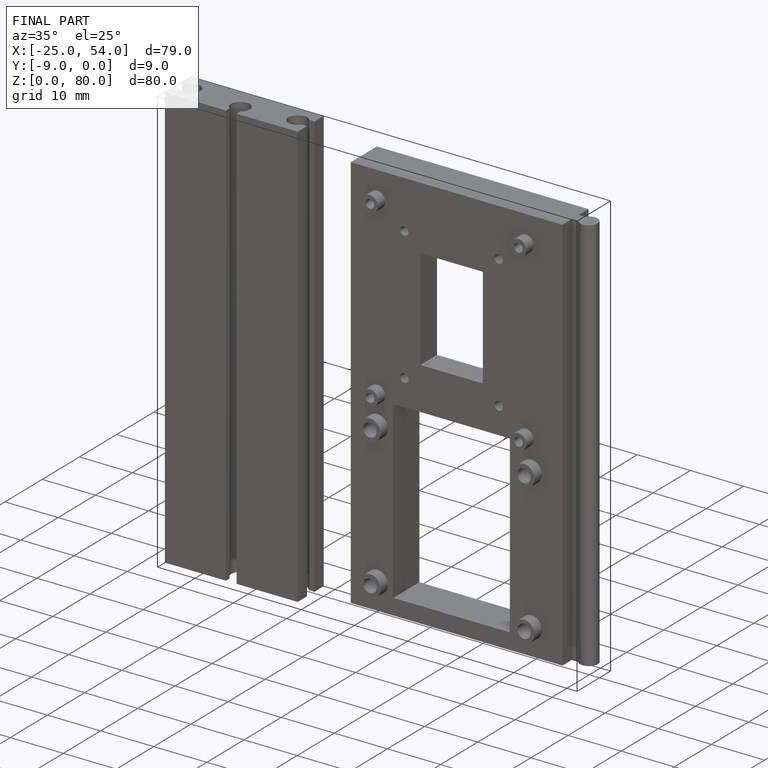
[diagram: finished part — iso view with bounding-box wireframe]
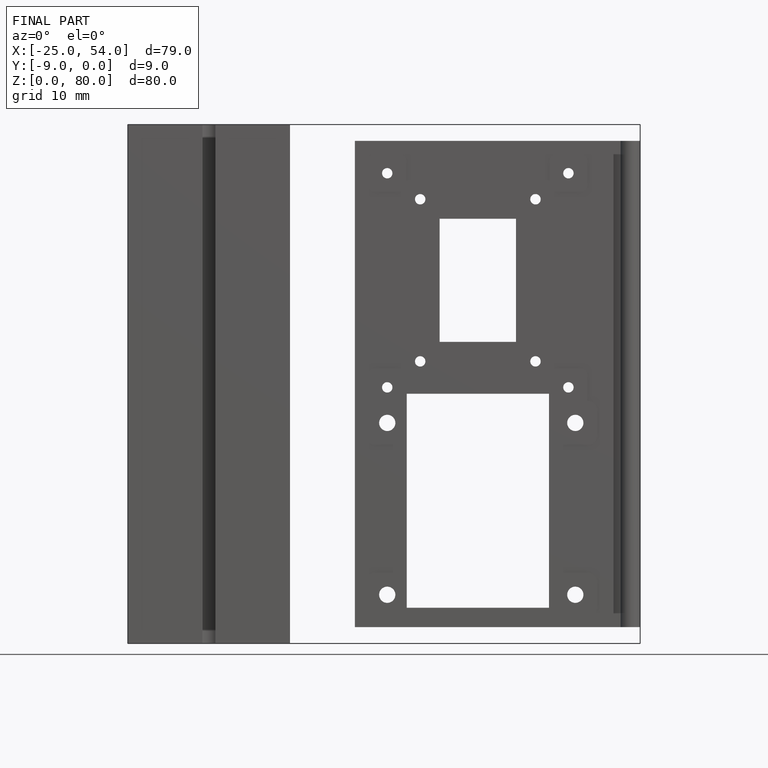
[diagram: finished part — front view with bounding-box wireframe]
